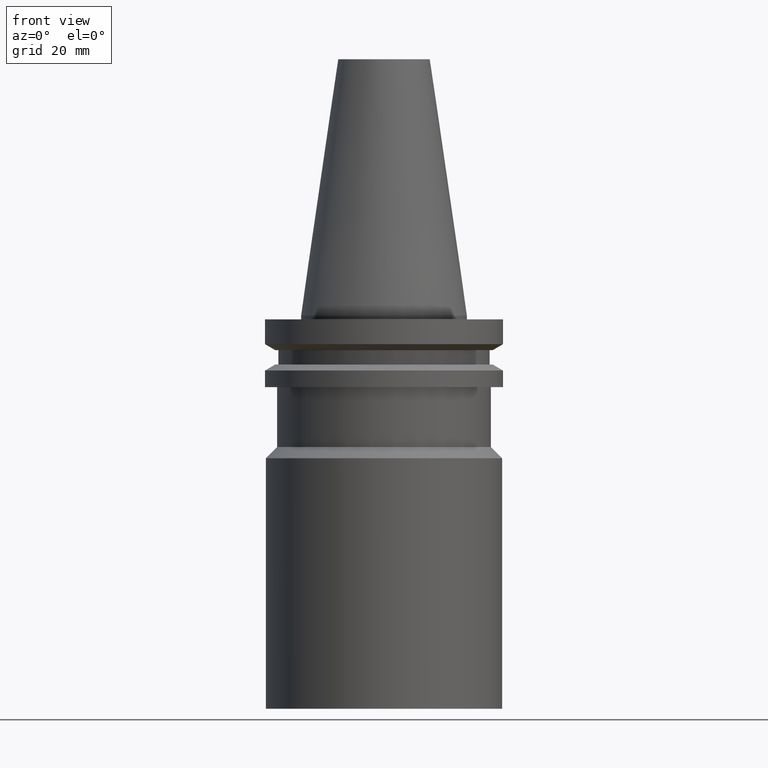
[diagram: clean part render]
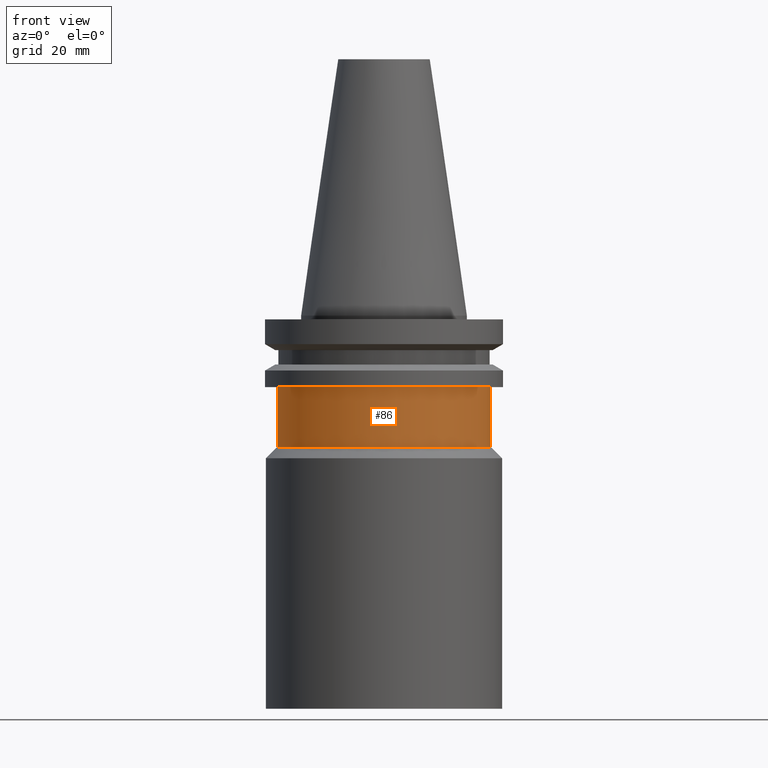
[diagram: same view with one face highlighted and labeled with its STEP entity id]
A machine part, front view. The second image highlights one B-rep face of the part: STEP entity #86.
In plain terms, the highlighted cylindrical surface (bore or boss wall) has radius 28.5 mm, axis along (0, -0, -1).
Its self-contained STEP definition (entity closure, byte-faithful):
#65=EDGE_CURVE('Unnamed[1]',#167,#167,#168,.T.);
#86=ADVANCED_FACE('Unnamed[1]',(#199,#200),#201,.T.);
#124=EDGE_CURVE('Unnamed[1]',#258,#258,#259,.T.);
#167=VERTEX_POINT('',#304);
#168=CIRCLE('',#305,28.5000000000002);
#199=FACE_BOUND('',#344,.T.);
#200=FACE_BOUND('',#345,.T.);
#201=CYLINDRICAL_SURFACE('',#346,28.5000000000003);
#258=VERTEX_POINT('',#417);
#259=CIRCLE('',#418,28.5000000000003);
#304=CARTESIAN_POINT('',(1.16647607618786E-015,28.5000000000002,-19.0500000000001));
#305=AXIS2_PLACEMENT_3D('',#457,#458,#459);
#344=EDGE_LOOP('',(#493));
#345=EDGE_LOOP('',(#494));
#346=AXIS2_PLACEMENT_3D('',#495,#496,#497);
#417=CARTESIAN_POINT('',(2.14313189850789E-015,28.5000000000003,-35.0000000000003));
#418=AXIS2_PLACEMENT_3D('',#558,#559,#560);
#457=CARTESIAN_POINT('',(1.16647607618786E-015,-1.92905278140014E-014,-19.0500000000001));
#458=DIRECTION('',(6.12323399573677E-017,-1.22421842920777E-016,-1.0));
#459=DIRECTION('',(2.66902317316309E-033,1.0,-1.22421842920777E-016));
#493=ORIENTED_EDGE('',*,*,#124,.F.);
#494=ORIENTED_EDGE('',*,*,#65,.T.);
#495=CARTESIAN_POINT('',(1.65480398734787E-015,-2.02668420112948E-014,-27.0250000000002));
#496=DIRECTION('',(6.12323399573677E-017,-1.22421842920777E-016,-1.0));
#497=DIRECTION('',(2.66902317316309E-033,1.0,-1.22421842920777E-016));
#558=CARTESIAN_POINT('',(2.14313189850789E-015,-2.12431562085881E-014,-35.0000000000003));
#559=DIRECTION('',(6.12323399573677E-017,-1.22421842920777E-016,-1.0));
#560=DIRECTION('',(2.66902317316308E-033,1.0,-1.22421842920777E-016));